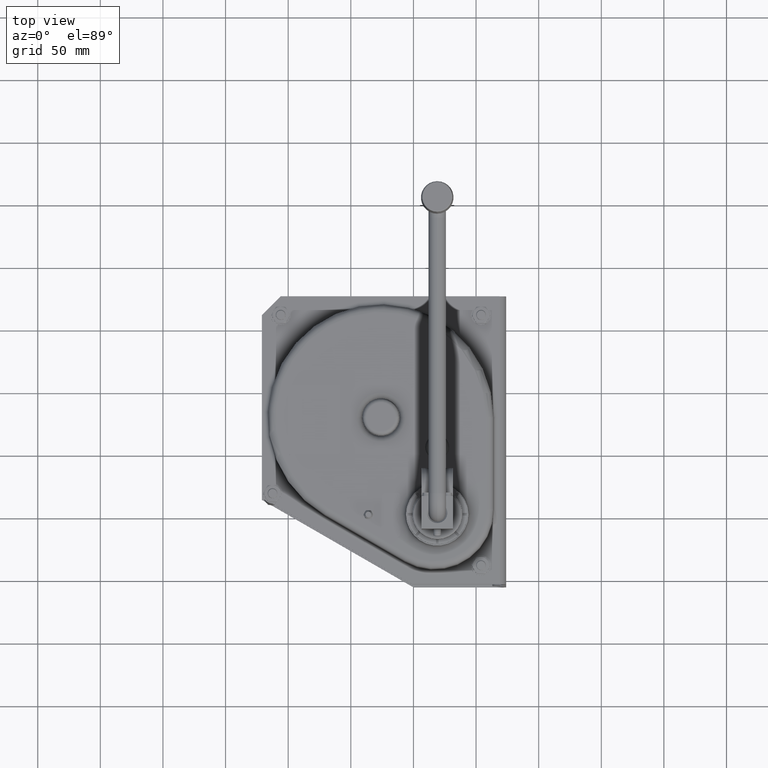
[diagram: clean part render]
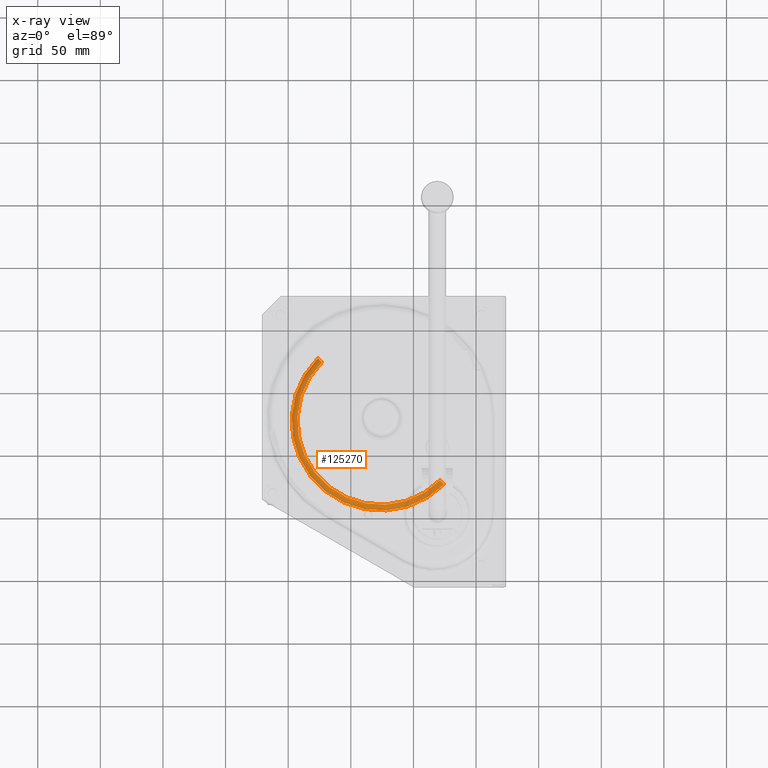
[diagram: x-ray — body ghosted, one internal face saturated and labeled with its STEP entity id]
A machine part, top view, then the same camera in x-ray: the body is ghosted and one INTERNAL B-rep face — a face not visible from any outside direction — is saturated and labeled: STEP entity #125270.
In plain terms, the highlighted toroidal blend (fillet) surface has major radius 66.6679 mm and minor (blend) radius 5 mm.
Its self-contained STEP definition (entity closure, byte-faithful):
#124780=CARTESIAN_POINT('',(1.4210854715202E-13,9.80521346798298,
1.70530256582424E-13));
#124790=DIRECTION('',(0.,1.,0.));
#124800=DIRECTION('',(-0.707106781186547,0.,-0.707106781186548));
#124810=AXIS2_PLACEMENT_3D('',#124780,#124790,#124800);
#124820=CIRCLE('',#124810,66.6678788880707);
#124830=CARTESIAN_POINT('',(-47.1413092490781,9.80521346798298,
-47.1413092490781));
#124840=VERTEX_POINT('',#124830);
#124850=CARTESIAN_POINT('',(47.1413092490784,9.80521346798298,
47.1413092490784));
#124860=VERTEX_POINT('',#124850);
#124890=EDGE_CURVE('',#124860,#124840,#124820,.T.);
#124940=CARTESIAN_POINT('',(1.4210854715202E-13,4.80521346798298,
1.70530256582424E-13));
#124950=DIRECTION('',(0.,1.,0.));
#124960=DIRECTION('',(-0.707106781186548,0.,-0.707106781186548));
#124970=AXIS2_PLACEMENT_3D('',#124940,#124950,#124960);
#124980=TOROIDAL_SURFACE('',#124970,66.6678788880707,5.);
#124990=CARTESIAN_POINT('',(47.1413092490784,4.80521346798298,
47.1413092490784));
#125000=DIRECTION('',(0.707106781186548,0.,-0.707106781186547));
#125010=DIRECTION('',(0.,1.,0.));
#125020=AXIS2_PLACEMENT_3D('',#124990,#125000,#125010);
#125030=CIRCLE('',#125020,5.);
#125040=CARTESIAN_POINT('',(50.3816795982823,6.80521346798299,
50.3816795982823));
#125050=VERTEX_POINT('',#125040);
#125060=EDGE_CURVE('',#124860,#125050,#125030,.T.);
#125070=ORIENTED_EDGE('',*,*,#125060,.F.);
#125080=CARTESIAN_POINT('',(1.4210854715202E-13,6.80521346798301,
1.70530256582424E-13));
#125090=DIRECTION('',(0.,1.,0.));
#125100=DIRECTION('',(-0.707106781186547,0.,-0.707106781186548));
#125110=AXIS2_PLACEMENT_3D('',#125080,#125090,#125100);
#125120=CIRCLE('',#125110,71.2504545830265);
#125130=CARTESIAN_POINT('',(-50.381679598282,6.80521346798299,
-50.381679598282));
#125140=VERTEX_POINT('',#125130);
#125150=EDGE_CURVE('',#125050,#125140,#125120,.T.);
#125160=ORIENTED_EDGE('',*,*,#125150,.F.);
#125170=CARTESIAN_POINT('',(-47.1413092490781,4.80521346798298,
-47.1413092490781));
#125180=DIRECTION('',(-0.707106781186548,0.,0.707106781186547));
#125190=DIRECTION('',(0.,1.,0.));
#125200=AXIS2_PLACEMENT_3D('',#125170,#125180,#125190);
#125210=CIRCLE('',#125200,5.);
#125220=EDGE_CURVE('',#124840,#125140,#125210,.T.);
#125230=ORIENTED_EDGE('',*,*,#125220,.T.);
#125240=ORIENTED_EDGE('',*,*,#124890,.T.);
#125250=EDGE_LOOP('',(#125240,#125230,#125160,#125070));
#125260=FACE_OUTER_BOUND('',#125250,.T.);
#125270=ADVANCED_FACE('',(#125260),#124980,.F.);